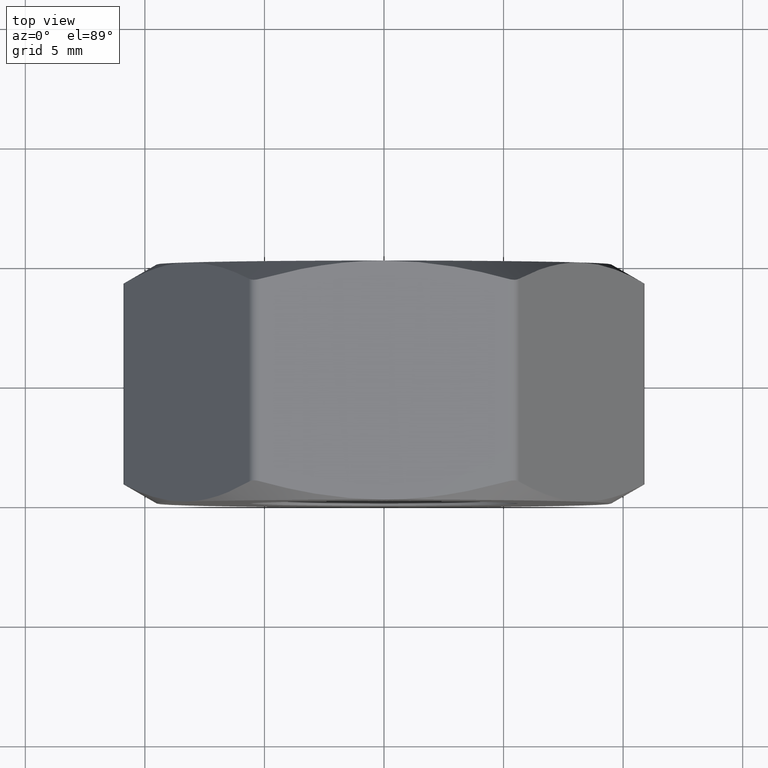
[diagram: clean part render]
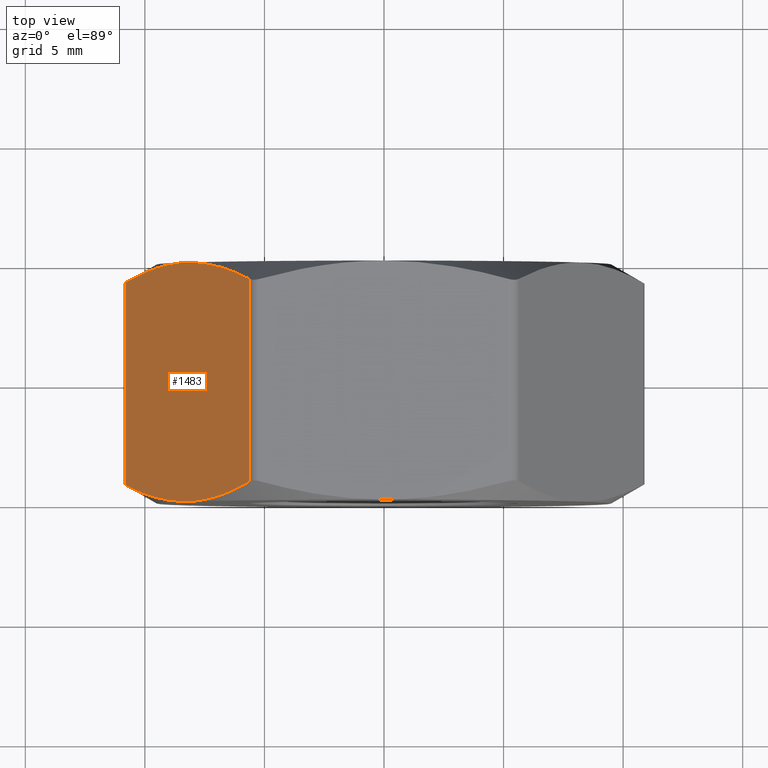
[diagram: same view with one face highlighted and labeled with its STEP entity id]
A machine part, top view. The second image highlights one B-rep face of the part: STEP entity #1483.
In plain terms, the highlighted planar face has unit normal (0.866, 0, -0.5).
Its self-contained STEP definition (entity closure, byte-faithful):
#5 = CARTESIAN_POINT ( 'NONE',  ( -10.40106991011710700, 4.468240341392041500, 0.9848184626013072300 ) ) ;
#441 = VERTEX_POINT ( 'NONE', #3309 ) ;
#1483 = ADVANCED_FACE ( 'NONE', ( #2929 ), #10642, .F. ) ;
#1535 = CARTESIAN_POINT ( 'NONE',  ( -8.007001594286084200, -5.000000000000008900, 5.131466422411501900 ) ) ;
#2063 = CARTESIAN_POINT ( 'NONE',  ( -10.96965511460288800, 5.000000000000000000, -3.457418005844199900E-015 ) ) ;
#2178 = LINE ( 'NONE', #9989, #14803 ) ;
#2214 = B_SPLINE_CURVE_WITH_KNOTS ( 'NONE', 3,
 ( #5906, #2354, #8358, #10787, #9610, #2410 ),
 .UNSPECIFIED., .F., .F.,
 ( 4, 2, 4 ),
 ( 0.0002975922718325324000, 0.002923788827799093200, 0.005549985383765654100 ),
 .UNSPECIFIED. ) ;
#2354 = CARTESIAN_POINT ( 'NONE',  ( -10.40005022359210000, -4.468805358379077200, 0.9865846114704162100 ) ) ;
#2410 = CARTESIAN_POINT ( 'NONE',  ( -8.227241335952166800, -5.000000000000000000, 4.749999999999998200 ) ) ;
#2879 = CARTESIAN_POINT ( 'NONE',  ( -10.82531754730548100, 4.233161112797772000, 0.2499999999999961700 ) ) ;
#2929 = FACE_OUTER_BOUND ( 'NONE', #9631, .T. ) ;
#3309 = CARTESIAN_POINT ( 'NONE',  ( -10.82531754730597800, -4.233161112797497500, 0.2499999999991349700 ) ) ;
#3574 = CARTESIAN_POINT ( 'NONE',  ( -10.82531754730548100, 4.233161112797772000, 0.2499999999999961700 ) ) ;
#3588 = CARTESIAN_POINT ( 'NONE',  ( -6.482771478358116300, 4.661682687220363200, 7.771510425625338700 ) ) ;
#4820 = CARTESIAN_POINT ( 'NONE',  ( -5.629165124598850800, -4.233161112797772900, 9.249999999999998200 ) ) ;
#4916 = CARTESIAN_POINT ( 'NONE',  ( -9.106704621436124500, 4.912405536657726800, 3.226724906150326300 ) ) ;
#5289 = CARTESIAN_POINT ( 'NONE',  ( -8.227241335952166800, -5.000000000000000000, 4.749999999999998200 ) ) ;
#5850 = DIRECTION ( 'NONE',  ( 0.0000000000000000000, -1.000000000000000000, 0.0000000000000000000 ) ) ;
#5906 = CARTESIAN_POINT ( 'NONE',  ( -10.82531754730597800, -4.233161112797497500, 0.2499999999991349700 ) ) ;
#6040 = VECTOR ( 'NONE', #5850, 1000.000000000000000 ) ;
#6044 = CARTESIAN_POINT ( 'NONE',  ( -8.227241335952166800, 5.000000000000000000, 4.749999999999998200 ) ) ;
#6078 = VERTEX_POINT ( 'NONE', #15518 ) ;
#6096 = CARTESIAN_POINT ( 'NONE',  ( -7.348052271291358300, 4.927662757294315900, 6.272800129451474600 ) ) ;
#6151 = CARTESIAN_POINT ( 'NONE',  ( -7.785049015618852800, 5.000000000000007100, 5.515899565534068600 ) ) ;
#6407 = CARTESIAN_POINT ( 'NONE',  ( -6.053412761787225100, -4.468240341392040600, 8.515181537398685700 ) ) ;
#6442 = DIRECTION ( 'NONE',  ( -0.0000000000000000000, 1.000000000000000000, -0.0000000000000000000 ) ) ;
#6724 = EDGE_CURVE ( 'NONE', #6977, #441, #7594, .T. ) ;
#6793 = EDGE_CURVE ( 'NONE', #441, #11237, #2214, .T. ) ;
#6884 = DIRECTION ( 'NONE',  ( -0.4999999999999998900, 0.0000000000000000000, -0.8660254037844387100 ) ) ;
#6915 = B_SPLINE_CURVE_WITH_KNOTS ( 'NONE', 3,
 ( #8393, #10868, #3588, #6096, #6151, #6044 ),
 .UNSPECIFIED., .F., .F.,
 ( 4, 2, 4 ),
 ( 0.0002975922718325331600, 0.002923788827799093200, 0.005549985383765653300 ),
 .UNSPECIFIED. ) ;
#6977 = VERTEX_POINT ( 'NONE', #2879 ) ;
#7594 = LINE ( 'NONE', #8205, #6040 ) ;
#7807 = CARTESIAN_POINT ( 'NONE',  ( -7.785726958241924400, -4.982053147081708200, 5.514725334466294100 ) ) ;
#7881 = ORIENTED_EDGE ( 'NONE', *, *, #6793, .T. ) ;
#8086 = B_SPLINE_CURVE_WITH_KNOTS ( 'NONE', 3,
 ( #13534, #1535, #7807, #13642, #14910, #12549, #6407, #13748 ),
 .UNSPECIFIED., .F., .F.,
 ( 4, 2, 2, 4 ),
 ( 0.005549985383765654100, 0.006857997360578059000, 0.008166009337390464600, 0.01078203329101527400 ),
 .UNSPECIFIED. ) ;
#8205 = CARTESIAN_POINT ( 'NONE',  ( -10.82531754730548100, 5.000000000000000000, 0.2499999999999964800 ) ) ;
#8358 = CARTESIAN_POINT ( 'NONE',  ( -9.971711193546218200, -4.661682687220364100, 1.728489574374658000 ) ) ;
#8393 = CARTESIAN_POINT ( 'NONE',  ( -5.629165124598353400, 4.233161112797496600, 9.250000000000859800 ) ) ;
#8728 = ORIENTED_EDGE ( 'NONE', *, *, #6724, .T. ) ;
#9489 = EDGE_CURVE ( 'NONE', #6078, #14431, #6915, .T. ) ;
#9532 = CARTESIAN_POINT ( 'NONE',  ( -8.227241335952166800, 5.000000000000000000, 4.749999999999998200 ) ) ;
#9610 = CARTESIAN_POINT ( 'NONE',  ( -8.669433656285479000, -5.000000000000007100, 3.984100434465926500 ) ) ;
#9631 = EDGE_LOOP ( 'NONE', ( #9759, #8728, #7881, #12991, #11835, #13578 ) ) ;
#9679 = CARTESIAN_POINT ( 'NONE',  ( -9.324286606578478900, 4.860768812073041000, 2.849861853072071400 ) ) ;
#9759 = ORIENTED_EDGE ( 'NONE', *, *, #13785, .T. ) ;
#9795 = VERTEX_POINT ( 'NONE', #4820 ) ;
#9989 = CARTESIAN_POINT ( 'NONE',  ( -5.629165124598850800, 5.000000000000000000, 9.249999999999998200 ) ) ;
#10112 = B_SPLINE_CURVE_WITH_KNOTS ( 'NONE', 3,
 ( #9532, #10857, #14523, #4916, #9679, #13364, #5, #3574 ),
 .UNSPECIFIED., .F., .F.,
 ( 4, 2, 2, 4 ),
 ( 0.005549985383765653300, 0.006857997360578059800, 0.008166009337390466400, 0.01078203329101527800 ),
 .UNSPECIFIED. ) ;
#10172 = AXIS2_PLACEMENT_3D ( 'NONE', #2063, #10491, #6884 ) ;
#10270 = CARTESIAN_POINT ( 'NONE',  ( -8.227241335952166800, 5.000000000000000000, 4.749999999999998200 ) ) ;
#10491 = DIRECTION ( 'NONE',  ( 0.8660254037844387100, 0.0000000000000000000, -0.4999999999999998900 ) ) ;
#10642 = PLANE ( 'NONE',  #10172 ) ;
#10787 = CARTESIAN_POINT ( 'NONE',  ( -9.106430400612971700, -4.927662757294317700, 3.227199870548520500 ) ) ;
#10857 = CARTESIAN_POINT ( 'NONE',  ( -8.447481077618251200, 5.000000000000007100, 4.368533577588493700 ) ) ;
#10868 = CARTESIAN_POINT ( 'NONE',  ( -6.054432448312232000, 4.468805358379076300, 8.513415388529578500 ) ) ;
#11237 = VERTEX_POINT ( 'NONE', #5289 ) ;
#11835 = ORIENTED_EDGE ( 'NONE', *, *, #12019, .T. ) ;
#12019 = EDGE_CURVE ( 'NONE', #9795, #6078, #2178, .T. ) ;
#12549 = CARTESIAN_POINT ( 'NONE',  ( -6.481161992788941900, -4.661040693212942000, 7.774298136405196400 ) ) ;
#12991 = ORIENTED_EDGE ( 'NONE', *, *, #13459, .T. ) ;
#13364 = CARTESIAN_POINT ( 'NONE',  ( -9.973320679115390800, 4.661040693212941100, 1.725701863594798500 ) ) ;
#13459 = EDGE_CURVE ( 'NONE', #11237, #9795, #8086, .T. ) ;
#13534 = CARTESIAN_POINT ( 'NONE',  ( -8.227241335952166800, -5.000000000000000000, 4.749999999999998200 ) ) ;
#13578 = ORIENTED_EDGE ( 'NONE', *, *, #9489, .T. ) ;
#13642 = CARTESIAN_POINT ( 'NONE',  ( -7.347778050468204600, -4.912405536657725900, 6.273275093849667500 ) ) ;
#13748 = CARTESIAN_POINT ( 'NONE',  ( -5.629165124598850800, -4.233161112797772900, 9.249999999999998200 ) ) ;
#13785 = EDGE_CURVE ( 'NONE', #14431, #6977, #10112, .T. ) ;
#14431 = VERTEX_POINT ( 'NONE', #10270 ) ;
#14523 = CARTESIAN_POINT ( 'NONE',  ( -8.668755713662404700, 4.982053147081707300, 3.985274665533702400 ) ) ;
#14803 = VECTOR ( 'NONE', #6442, 1000.000000000000000 ) ;
#14910 = CARTESIAN_POINT ( 'NONE',  ( -7.130196065325851200, -4.860768812073040100, 6.650138146927925000 ) ) ;
#15518 = CARTESIAN_POINT ( 'NONE',  ( -5.629165124598353400, 4.233161112797496600, 9.250000000000859800 ) ) ;